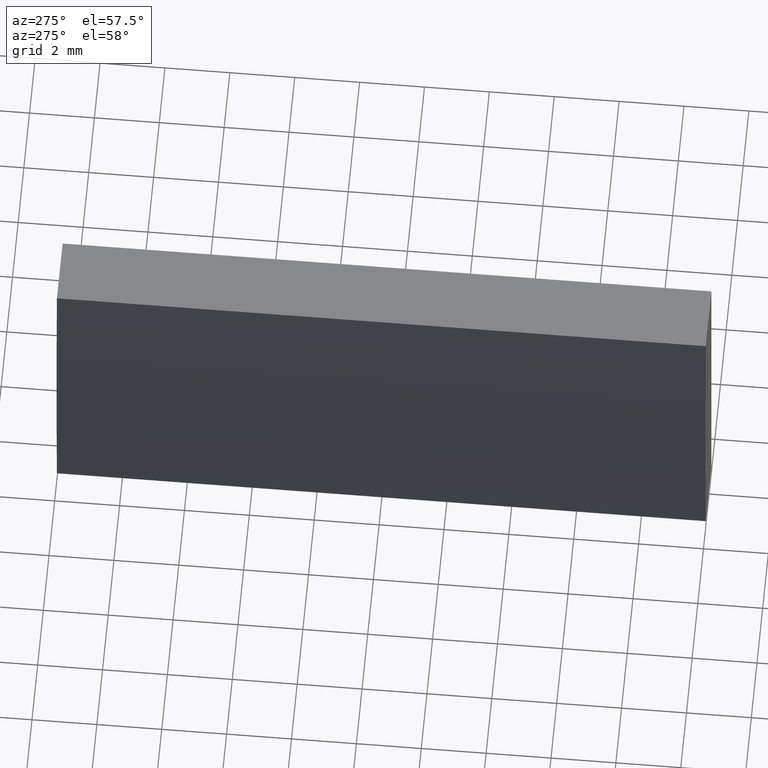
[diagram: clean part render]
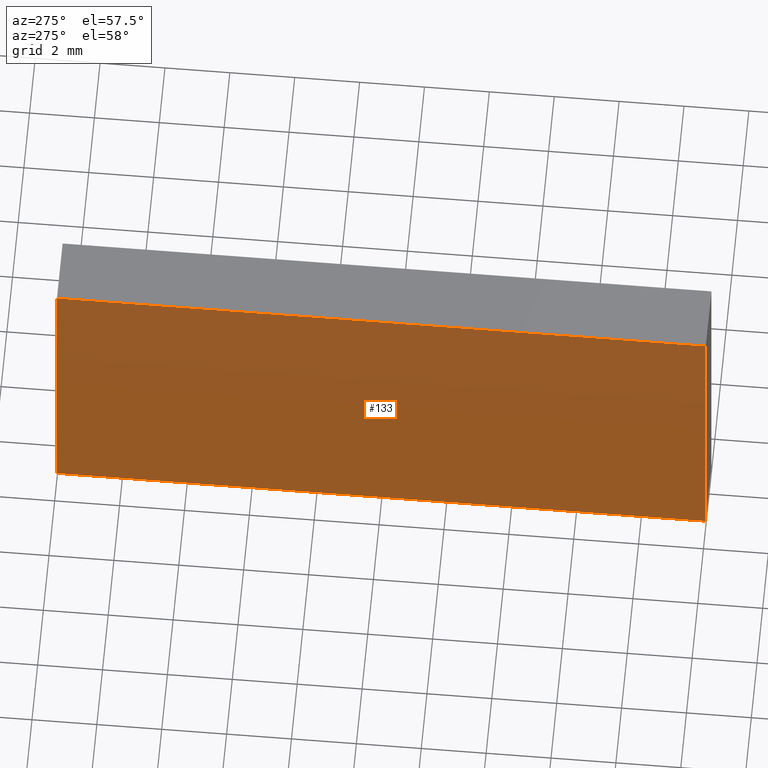
[diagram: same view with one face highlighted and labeled with its STEP entity id]
A machine part, auxiliary view. The second image highlights one B-rep face of the part: STEP entity #133.
In plain terms, the highlighted cylindrical surface (partial cylindrical patch) has radius 91.7 mm, axis along (-0, -1, -0).
Its self-contained STEP definition (entity closure, byte-faithful):
#7 = EDGE_CURVE ( 'NONE', #204, #153, #84, .T. ) ;
#8 = DIRECTION ( 'NONE',  ( 0.0000000000000000000, 1.000000000000000000, 0.0000000000000000000 ) ) ;
#19 = FACE_OUTER_BOUND ( 'NONE', #161, .T. ) ;
#20 = CARTESIAN_POINT ( 'NONE',  ( 4.355204334851265500, 20.00000000000000000, 4.286263797015675000E-017 ) ) ;
#27 = CARTESIAN_POINT ( 'NONE',  ( -87.20838012971630300, 20.00000000000000000, 5.000000000000000000 ) ) ;
#31 = DIRECTION ( 'NONE',  ( 0.0000000000000000000, 1.000000000000000000, 0.0000000000000000000 ) ) ;
#46 = VERTEX_POINT ( 'NONE', #172 ) ;
#54 = VECTOR ( 'NONE', #166, 1000.000000000000000 ) ;
#56 = EDGE_CURVE ( 'NONE', #62, #46, #175, .T. ) ;
#58 = VECTOR ( 'NONE', #134, 1000.000000000000000 ) ;
#62 = VERTEX_POINT ( 'NONE', #178 ) ;
#67 = CARTESIAN_POINT ( 'NONE',  ( -87.20838012971630300, 20.00000000000000000, -5.000000000000000000 ) ) ;
#72 = EDGE_CURVE ( 'NONE', #204, #62, #177, .T. ) ;
#74 = CARTESIAN_POINT ( 'NONE',  ( 4.355204334851265500, 0.0000000000000000000, 4.286263797015675000E-017 ) ) ;
#80 = DIRECTION ( 'NONE',  ( 0.0000000000000000000, 0.0000000000000000000, -1.000000000000000000 ) ) ;
#82 = EDGE_CURVE ( 'NONE', #153, #46, #111, .T. ) ;
#84 = LINE ( 'NONE', #67, #58 ) ;
#92 = ORIENTED_EDGE ( 'NONE', *, *, #82, .T. ) ;
#100 = CARTESIAN_POINT ( 'NONE',  ( 4.355204334851265500, 20.00000000000000000, 4.286263797015675000E-017 ) ) ;
#101 = ORIENTED_EDGE ( 'NONE', *, *, #72, .F. ) ;
#103 = CYLINDRICAL_SURFACE ( 'NONE', #189, 91.70000000000000300 ) ;
#111 = CIRCLE ( 'NONE', #169, 91.70000000000000300 ) ;
#120 = DIRECTION ( 'NONE',  ( 0.0000000000000000000, 0.0000000000000000000, 1.000000000000000000 ) ) ;
#121 = ORIENTED_EDGE ( 'NONE', *, *, #7, .T. ) ;
#130 = AXIS2_PLACEMENT_3D ( 'NONE', #100, #31, #120 ) ;
#131 = ORIENTED_EDGE ( 'NONE', *, *, #56, .F. ) ;
#133 = ADVANCED_FACE ( 'NONE', ( #19 ), #103, .T. ) ;
#134 = DIRECTION ( 'NONE',  ( -0.0000000000000000000, -1.000000000000000000, -0.0000000000000000000 ) ) ;
#136 = DIRECTION ( 'NONE',  ( -0.0000000000000000000, -1.000000000000000000, -0.0000000000000000000 ) ) ;
#153 = VERTEX_POINT ( 'NONE', #202 ) ;
#161 = EDGE_LOOP ( 'NONE', ( #92, #131, #101, #121 ) ) ;
#166 = DIRECTION ( 'NONE',  ( -0.0000000000000000000, -1.000000000000000000, -0.0000000000000000000 ) ) ;
#169 = AXIS2_PLACEMENT_3D ( 'NONE', #74, #8, #173 ) ;
#172 = CARTESIAN_POINT ( 'NONE',  ( -87.20838012971630300, 0.0000000000000000000, 5.000000000000000000 ) ) ;
#173 = DIRECTION ( 'NONE',  ( 0.0000000000000000000, 0.0000000000000000000, 1.000000000000000000 ) ) ;
#175 = LINE ( 'NONE', #27, #54 ) ;
#177 = CIRCLE ( 'NONE', #130, 91.70000000000000300 ) ;
#178 = CARTESIAN_POINT ( 'NONE',  ( -87.20838012971630300, 20.00000000000000000, 5.000000000000000000 ) ) ;
#184 = CARTESIAN_POINT ( 'NONE',  ( -87.20838012971630300, 20.00000000000000000, -5.000000000000000000 ) ) ;
#189 = AXIS2_PLACEMENT_3D ( 'NONE', #20, #136, #80 ) ;
#202 = CARTESIAN_POINT ( 'NONE',  ( -87.20838012971630300, 0.0000000000000000000, -5.000000000000000000 ) ) ;
#204 = VERTEX_POINT ( 'NONE', #184 ) ;